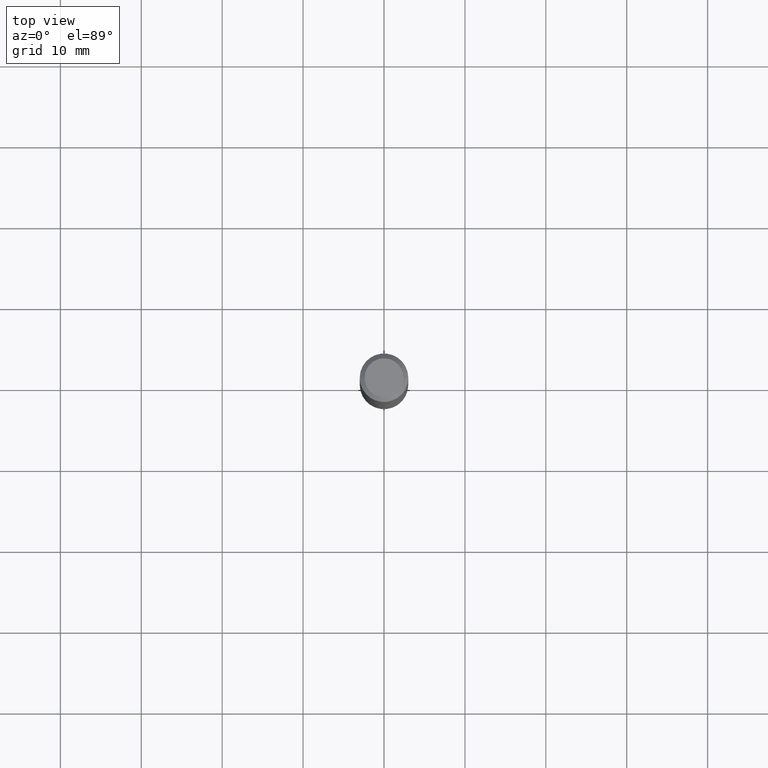
[diagram: clean part render]
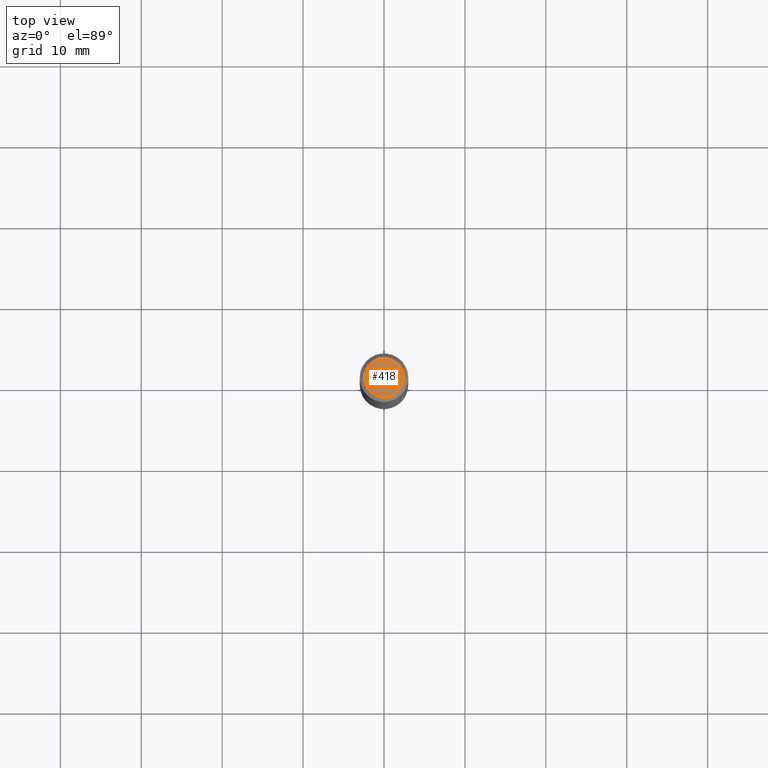
[diagram: same view with one face highlighted and labeled with its STEP entity id]
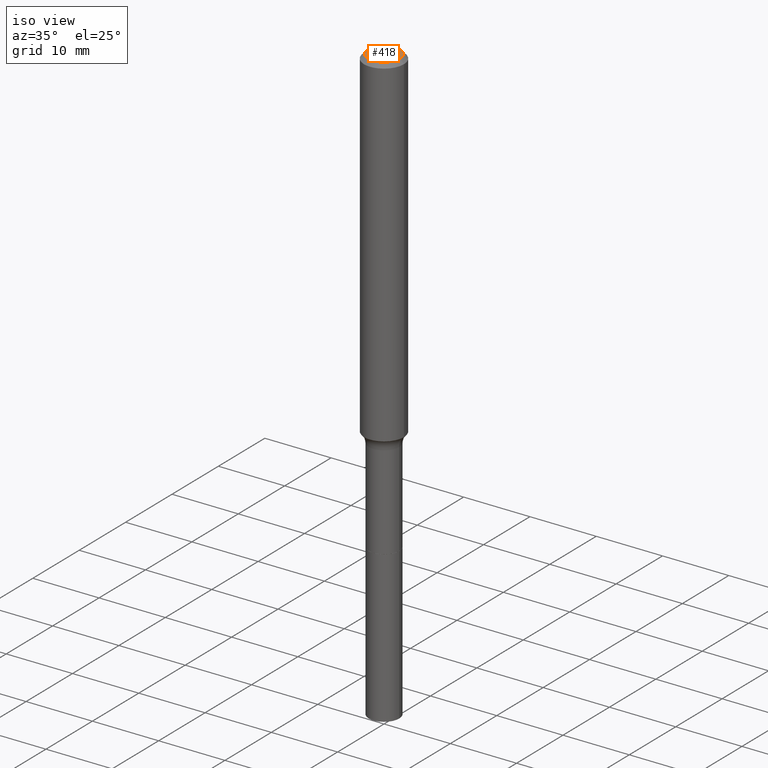
[diagram: same view with one face highlighted and labeled with its STEP entity id]
A machine part, top view. The second image highlights one B-rep face of the part: STEP entity #418.
A second angle (iso view) of the same face is appended — the face is thin or edge-on in the first view.
In plain terms, the highlighted planar face has unit normal (0, -0, -1).
Its self-contained STEP definition (entity closure, byte-faithful):
#54 = VERTEX_POINT ( 'NONE', #307 ) ;
#70 = CARTESIAN_POINT ( 'NONE',  ( 7.545787641473140628E-46, -1.077338491108201769E-31, -3.085620075131671975E-17 ) ) ;
#81 = AXIS2_PLACEMENT_3D ( 'NONE', #70, #102, #392 ) ;
#97 = EDGE_CURVE ( 'NONE', #54, #399, #303, .T. ) ;
#102 = DIRECTION ( 'NONE',  ( -2.445468806185136597E-29, 3.491481338843145583E-15, 1.000000000000000000 ) ) ;
#105 = EDGE_LOOP ( 'NONE', ( #156, #112 ) ) ;
#112 = ORIENTED_EDGE ( 'NONE', *, *, #97, .T. ) ;
#124 = DIRECTION ( 'NONE',  ( -1.000000000000000000, 6.982962677686265922E-15, -4.876176775795935793E-29 ) ) ;
#150 = AXIS2_PLACEMENT_3D ( 'NONE', #161, #280, #124 ) ;
#156 = ORIENTED_EDGE ( 'NONE', *, *, #313, .T. ) ;
#157 = PLANE ( 'NONE',  #150 ) ;
#161 = CARTESIAN_POINT ( 'NONE',  ( 3.772893820736570314E-46, -5.386692455541008845E-32, -1.542810037565835988E-17 ) ) ;
#213 = CARTESIAN_POINT ( 'NONE',  ( 7.545787641473140628E-46, -1.077338491108201769E-31, -3.085620075131671975E-17 ) ) ;
#277 = FACE_OUTER_BOUND ( 'NONE', #105, .T. ) ;
#280 = DIRECTION ( 'NONE',  ( 2.438088387897960049E-29, -3.491481338843145188E-15, -1.000000000000000000 ) ) ;
#290 = CARTESIAN_POINT ( 'NONE',  ( -0.09447999999999998066, 7.009847083995354710E-16, -3.085620075132147757E-17 ) ) ;
#303 = CIRCLE ( 'NONE', #411, 0.09447999999999998066 ) ;
#307 = CARTESIAN_POINT ( 'NONE',  ( 0.09447999999999998066, -7.704367267948739676E-16, -3.085620075131172158E-17 ) ) ;
#313 = EDGE_CURVE ( 'NONE', #399, #54, #318, .T. ) ;
#318 = CIRCLE ( 'NONE', #81, 0.09447999999999998066 ) ;
#339 = DIRECTION ( 'NONE',  ( -2.445468806185136597E-29, 3.491481338843145583E-15, 1.000000000000000000 ) ) ;
#392 = DIRECTION ( 'NONE',  ( 1.000000000000000000, -6.982962677686267499E-15, 4.875432709231658792E-29 ) ) ;
#399 = VERTEX_POINT ( 'NONE', #290 ) ;
#411 = AXIS2_PLACEMENT_3D ( 'NONE', #213, #339, #487 ) ;
#418 = ADVANCED_FACE ( 'NONE', ( #277 ), #157, .F. ) ;
#487 = DIRECTION ( 'NONE',  ( 1.000000000000000000, -6.982962677686267499E-15, 4.875432709231658792E-29 ) ) ;